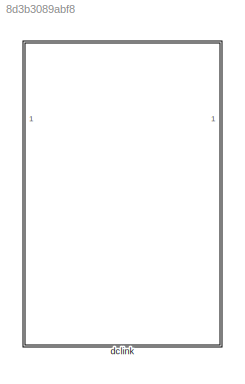
MODEL slx_8d3b3089abf8
KIND library
CONFIG AbsTol = auto
CONFIG EnableMultiTasking = off
CONFIG FixedStep = auto
CONFIG MaxStep = auto
CONFIG MinStep = auto
CONFIG RelTol = 1e-3
CONFIG SampleTimeConstraint = Unconstrained
CONFIG SolverName = VariableStepAuto
CONFIG StartTime = 0.0
CONFIG StopTime = 10.0
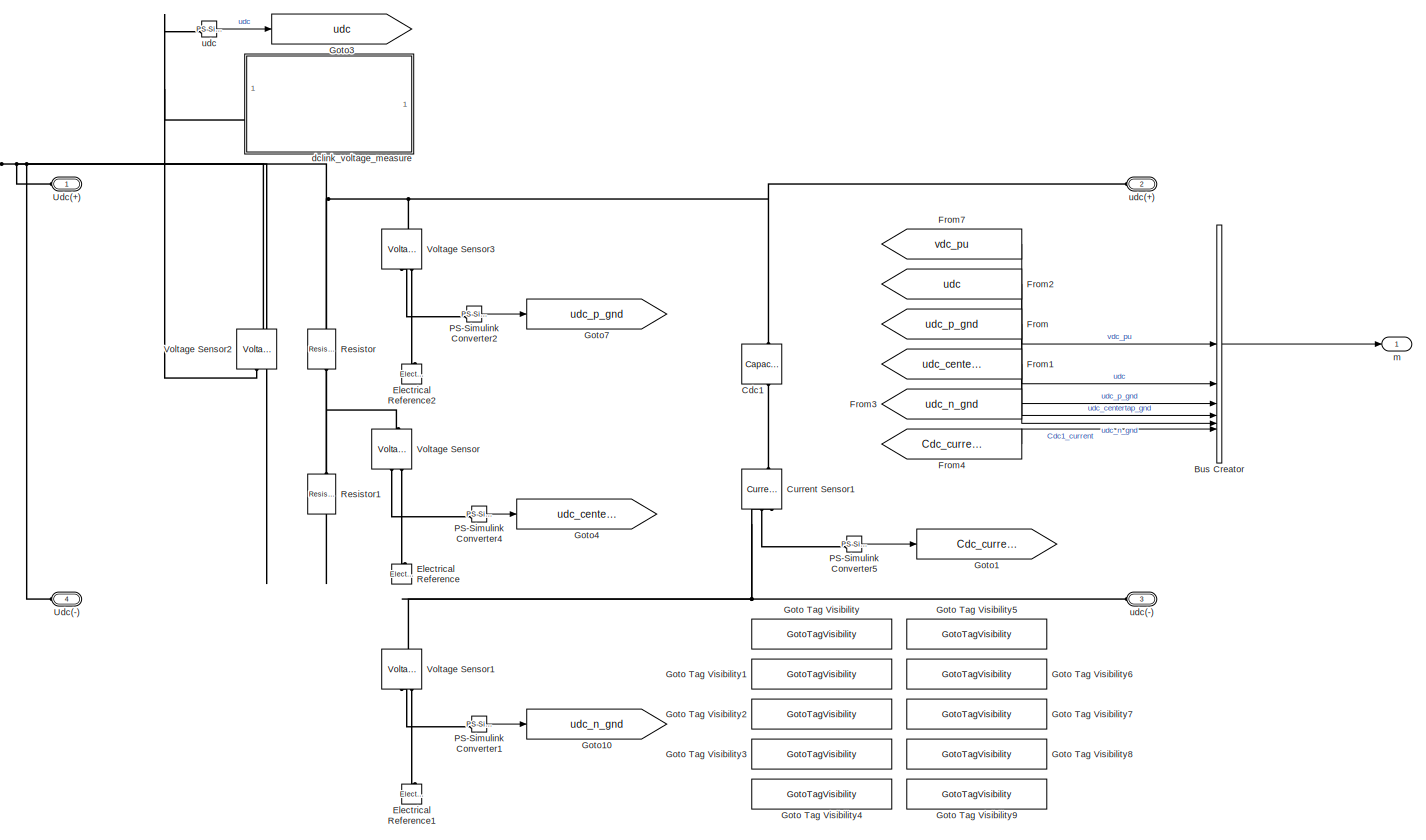
[diagram: dclink - part 1/1, most of the canvas]
BLOCK [SubSystem] dclink
BLOCK [BusCreator] dclink/Bus Creator
  DisplayOption = bar
  InheritFromInputs = on
  Inputs = 6
BLOCK [Reference] dclink/Cdc1  REF=fl_lib/Electrical/Electrical Elements/Capacitor
  NameLocation = right
  SourceBlock = fl_lib/Electrical/Electrical Elements/Capacitor
  SourceType = Capacitor
BLOCK [Reference] dclink/Current Sensor1  REF=fl_lib/Electrical/Electrical Sensors/Current Sensor
  NameLocation = left
  SourceBlock = fl_lib/Electrical/Electrical Sensors/Current Sensor
  SourceType = Current Sensor
BLOCK [Reference] dclink/Electrical Reference  REF=fl_lib/Electrical/Electrical Elements/Electrical Reference
  NameLocation = right
  SourceBlock = fl_lib/Electrical/Electrical Elements/Electrical Reference
  SourceType = Electrical Reference
BLOCK [Reference] dclink/Electrical Reference1  REF=fl_lib/Electrical/Electrical Elements/Electrical Reference
  NameLocation = right
  SourceBlock = fl_lib/Electrical/Electrical Elements/Electrical Reference
  SourceType = Electrical Reference
BLOCK [Reference] dclink/Electrical Reference2  REF=fl_lib/Electrical/Electrical Elements/Electrical Reference
  NameLocation = right
  SourceBlock = fl_lib/Electrical/Electrical Elements/Electrical Reference
  SourceType = Electrical Reference
BLOCK [From] dclink/From
  GotoTag = udc_p_gnd
  TagVisibility = scoped
BLOCK [From] dclink/From1
  GotoTag = udc_centertap_gnd
  TagVisibility = scoped
BLOCK [From] dclink/From2
  GotoTag = udc
  TagVisibility = scoped
BLOCK [From] dclink/From3
  GotoTag = udc_n_gnd
  TagVisibility = scoped
BLOCK [From] dclink/From4
  GotoTag = Cdc_current
  TagVisibility = scoped
BLOCK [From] dclink/From7
  GotoTag = vdc_pu
  TagVisibility = scoped
BLOCK [GotoTagVisibility] dclink/Goto Tag Visibility
  GotoTag = vdc_pu
BLOCK [GotoTagVisibility] dclink/Goto Tag Visibility1
  GotoTag = udc
BLOCK [GotoTagVisibility] dclink/Goto Tag Visibility2
  GotoTag = udc_n_gnd
BLOCK [GotoTagVisibility] dclink/Goto Tag Visibility3
  GotoTag = udc_centertap_gnd
BLOCK [GotoTagVisibility] dclink/Goto Tag Visibility4
  GotoTag = udc_p_gnd
BLOCK [GotoTagVisibility] dclink/Goto Tag Visibility5
  GotoTag = Cdc_current
BLOCK [GotoTagVisibility] dclink/Goto Tag Visibility6
  GotoTag = np_current
BLOCK [GotoTagVisibility] dclink/Goto Tag Visibility7
  GotoTag = Cdc2_current
BLOCK [GotoTagVisibility] dclink/Goto Tag Visibility8
  GotoTag = udc1
BLOCK [GotoTagVisibility] dclink/Goto Tag Visibility9
  GotoTag = udc2
BLOCK [Goto] dclink/Goto1
  GotoTag = Cdc_current
  TagVisibility = scoped
BLOCK [Goto] dclink/Goto10
  GotoTag = udc_n_gnd
  TagVisibility = scoped
BLOCK [Goto] dclink/Goto3
  GotoTag = udc
  TagVisibility = scoped
BLOCK [Goto] dclink/Goto4
  GotoTag = udc_centertap_gnd
  TagVisibility = scoped
BLOCK [Goto] dclink/Goto7
  GotoTag = udc_p_gnd
  TagVisibility = scoped
BLOCK [Reference] dclink/PS-Simulink Converter1  REF=nesl_utility/PS-Simulink
Converter
  SourceBlock = nesl_utility/PS-Simulink\nConverter
  SourceType = PS-Simulink\nConverter
BLOCK [Reference] dclink/PS-Simulink Converter2  REF=nesl_utility/PS-Simulink
Converter
  SourceBlock = nesl_utility/PS-Simulink\nConverter
  SourceType = PS-Simulink\nConverter
BLOCK [Reference] dclink/PS-Simulink Converter4  REF=nesl_utility/PS-Simulink
Converter
  SourceBlock = nesl_utility/PS-Simulink\nConverter
  SourceType = PS-Simulink\nConverter
BLOCK [Reference] dclink/PS-Simulink Converter5  REF=nesl_utility/PS-Simulink
Converter
  SourceBlock = nesl_utility/PS-Simulink\nConverter
  SourceType = PS-Simulink\nConverter
BLOCK [Reference] dclink/Resistor  REF=fl_lib/Electrical/Electrical Elements/Resistor
  NameLocation = left
  SourceBlock = fl_lib/Electrical/Electrical Elements/Resistor
  SourceType = Resistor
BLOCK [Reference] dclink/Resistor1  REF=fl_lib/Electrical/Electrical Elements/Resistor
  NameLocation = left
  SourceBlock = fl_lib/Electrical/Electrical Elements/Resistor
  SourceType = Resistor
BLOCK [PMIOPort] dclink/Udc(+)
  Side = Right
BLOCK [PMIOPort] dclink/Udc(-)
  Port = 4
  Side = Right
BLOCK [Reference] dclink/Voltage Sensor  REF=fl_lib/Electrical/Electrical Sensors/Voltage Sensor
  NameLocation = right
  SourceBlock = fl_lib/Electrical/Electrical Sensors/Voltage Sensor
  SourceType = Voltage Sensor
BLOCK [Reference] dclink/Voltage Sensor1  REF=fl_lib/Electrical/Electrical Sensors/Voltage Sensor
  NameLocation = right
  SourceBlock = fl_lib/Electrical/Electrical Sensors/Voltage Sensor
  SourceType = Voltage Sensor
BLOCK [Reference] dclink/Voltage Sensor2  REF=fl_lib/Electrical/Electrical Sensors/Voltage Sensor
  NameLocation = right
  SourceBlock = fl_lib/Electrical/Electrical Sensors/Voltage Sensor
  SourceType = Voltage Sensor
BLOCK [Reference] dclink/Voltage Sensor3  REF=fl_lib/Electrical/Electrical Sensors/Voltage Sensor
  NameLocation = right
  SourceBlock = fl_lib/Electrical/Electrical Sensors/Voltage Sensor
  SourceType = Voltage Sensor
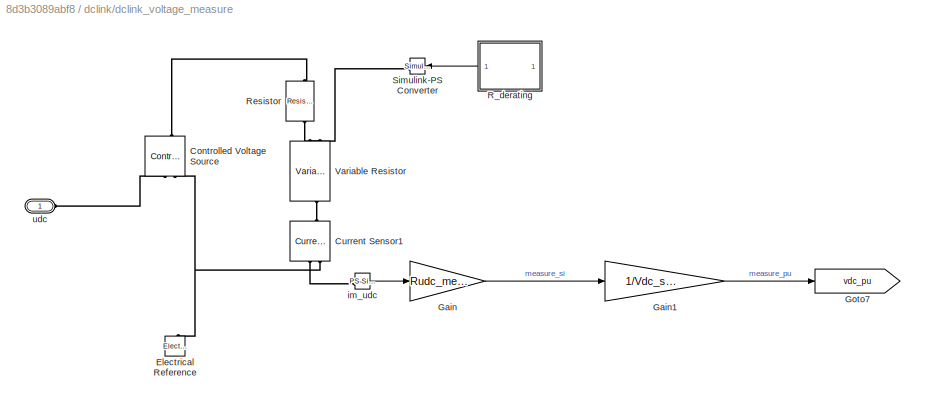
BLOCK [SubSystem] dclink/dclink_voltage_measure
BLOCK [Reference] dclink/dclink_voltage_measure/Controlled Voltage Source  REF=fl_lib/Electrical/Electrical Sources/Controlled Voltage
Source
  NameLocation = right
  SourceBlock = fl_lib/Electrical/Electrical Sources/Controlled Voltage\nSource
  SourceType = Controlled Voltage\nSource
BLOCK [Reference] dclink/dclink_voltage_measure/Current Sensor1  REF=fl_lib/Electrical/Electrical Sensors/Current Sensor
  NameLocation = left
  SourceBlock = fl_lib/Electrical/Electrical Sensors/Current Sensor
  SourceType = Current Sensor
BLOCK [Reference] dclink/dclink_voltage_measure/Electrical Reference  REF=fl_lib/Electrical/Electrical Elements/Electrical Reference
  NameLocation = right
  SourceBlock = fl_lib/Electrical/Electrical Elements/Electrical Reference
  SourceType = Electrical Reference
BLOCK [Gain] dclink/dclink_voltage_measure/Gain
  Gain = Rudc_measure
BLOCK [Gain] dclink/dclink_voltage_measure/Gain1
  Gain = 1/Vdc_scale
BLOCK [Goto] dclink/dclink_voltage_measure/Goto7
  GotoTag = vdc_pu
  TagVisibility = scoped
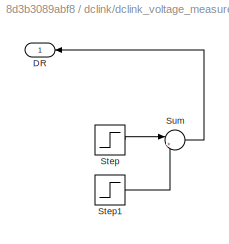
BLOCK [SubSystem] dclink/dclink_voltage_measure/R_derating
  Commented = on
BLOCK [Outport] dclink/dclink_voltage_measure/R_derating/DR
BLOCK [Step] dclink/dclink_voltage_measure/R_derating/Step
  After = 107.4e3/2
  SampleTime = 0
BLOCK [Step] dclink/dclink_voltage_measure/R_derating/Step1
  After = -107.4e3/2
  SampleTime = 0
  Time = 1.1
BLOCK [Sum] dclink/dclink_voltage_measure/R_derating/Sum
  Inputs = |++
BLOCK [Reference] dclink/dclink_voltage_measure/Resistor  REF=fl_lib/Electrical/Electrical Elements/Resistor
  NameLocation = left
  SourceBlock = fl_lib/Electrical/Electrical Elements/Resistor
  SourceType = Resistor
BLOCK [Reference] dclink/dclink_voltage_measure/Simulink-PS Converter  REF=nesl_utility/Simulink-PS
Converter
  NameLocation = top
  SourceBlock = nesl_utility/Simulink-PS\nConverter
  SourceType = Simulink-PS\nConverter
BLOCK [Reference] dclink/dclink_voltage_measure/Variable Resistor  REF=fl_lib/Electrical/Electrical Elements/Variable Resistor
  NameLocation = left
  SourceBlock = fl_lib/Electrical/Electrical Elements/Variable Resistor
  SourceType = Variable Resistor
BLOCK [Reference] dclink/dclink_voltage_measure/im_udc  REF=nesl_utility/PS-Simulink
Converter
  SourceBlock = nesl_utility/PS-Simulink\nConverter
  SourceType = PS-Simulink\nConverter
BLOCK [PMIOPort] dclink/dclink_voltage_measure/udc
  Side = Left
BLOCK [Outport] dclink/m
BLOCK [Reference] dclink/udc  REF=nesl_utility/PS-Simulink
Converter
  SourceBlock = nesl_utility/PS-Simulink\nConverter
  SourceType = PS-Simulink\nConverter
BLOCK [PMIOPort] dclink/udc(+)
  Port = 2
  Side = Left
BLOCK [PMIOPort] dclink/udc(-)
  Port = 3
  Side = Left
LINE dclink/Bus Creator:1 -> dclink/m:1
LINE dclink/From1:1 -> dclink/Bus Creator:4
LINE dclink/From2:1 -> dclink/Bus Creator:2
LINE dclink/From3:1 -> dclink/Bus Creator:5
LINE dclink/From4:1 -> dclink/Bus Creator:6
LINE dclink/From7:1 -> dclink/Bus Creator:1
LINE dclink/From:1 -> dclink/Bus Creator:3
LINE dclink/PS-Simulink Converter1:1 -> dclink/Goto10:1
LINE dclink/PS-Simulink Converter2:1 -> dclink/Goto7:1
LINE dclink/PS-Simulink Converter4:1 -> dclink/Goto4:1
LINE dclink/PS-Simulink Converter5:1 -> dclink/Goto1:1
LINE dclink/dclink_voltage_measure/Gain1:1 -> dclink/dclink_voltage_measure/Goto7:1
LINE dclink/dclink_voltage_measure/Gain:1 -> dclink/dclink_voltage_measure/Gain1:1
LINE dclink/dclink_voltage_measure/R_derating/Step1:1 -> dclink/dclink_voltage_measure/R_derating/Sum:2
LINE dclink/dclink_voltage_measure/R_derating/Step:1 -> dclink/dclink_voltage_measure/R_derating/Sum:1
LINE dclink/dclink_voltage_measure/R_derating/Sum:1 -> dclink/dclink_voltage_measure/R_derating/DR:1
LINE dclink/dclink_voltage_measure/R_derating:1 -> dclink/dclink_voltage_measure/Simulink-PS Converter:1
LINE dclink/dclink_voltage_measure/im_udc:1 -> dclink/dclink_voltage_measure/Gain:1
LINE dclink/udc:1 -> dclink/Goto3:1
PNET net1: dclink/Cdc1:LConn1 -- dclink/Resistor:LConn1 -- dclink/Udc(+):RConn1 -- dclink/Voltage Sensor2:LConn1 -- dclink/Voltage Sensor3:LConn1 -- dclink/udc(+):RConn1
PLINE dclink/Cdc1:RConn1 -- dclink/Current Sensor1:LConn1
PLINE dclink/Current Sensor1:RConn1 -- dclink/PS-Simulink Converter5:LConn1
PNET net2: dclink/Current Sensor1:RConn2 -- dclink/Resistor1:RConn1 -- dclink/Udc(-):RConn1 -- dclink/Voltage Sensor1:LConn1 -- dclink/Voltage Sensor2:RConn2 -- dclink/udc(-):RConn1
PLINE dclink/Electrical Reference1:LConn1 -- dclink/Voltage Sensor1:RConn2
PLINE dclink/Electrical Reference2:LConn1 -- dclink/Voltage Sensor3:RConn2
PLINE dclink/Electrical Reference:LConn1 -- dclink/Voltage Sensor:RConn2
PLINE dclink/PS-Simulink Converter1:LConn1 -- dclink/Voltage Sensor1:RConn1
PLINE dclink/PS-Simulink Converter2:LConn1 -- dclink/Voltage Sensor3:RConn1
PLINE dclink/PS-Simulink Converter4:LConn1 -- dclink/Voltage Sensor:RConn1
PNET net3: dclink/Resistor1:LConn1 -- dclink/Resistor:RConn1 -- dclink/Voltage Sensor:LConn1
PNET net4: dclink/Voltage Sensor2:RConn1 -- dclink/dclink_voltage_measure:LConn1 -- dclink/udc:LConn1
PLINE dclink/dclink_voltage_measure/Controlled Voltage Source:LConn1 -- dclink/dclink_voltage_measure/Resistor:LConn1
PLINE dclink/dclink_voltage_measure/Controlled Voltage Source:RConn1 -- dclink/dclink_voltage_measure/udc:RConn1
PNET net5: dclink/dclink_voltage_measure/Controlled Voltage Source:RConn2 -- dclink/dclink_voltage_measure/Current Sensor1:RConn2 -- dclink/dclink_voltage_measure/Electrical Reference:LConn1
PLINE dclink/dclink_voltage_measure/Current Sensor1:LConn1 -- dclink/dclink_voltage_measure/Variable Resistor:RConn1
PLINE dclink/dclink_voltage_measure/Current Sensor1:RConn1 -- dclink/dclink_voltage_measure/im_udc:LConn1
PLINE dclink/dclink_voltage_measure/Resistor:RConn1 -- dclink/dclink_voltage_measure/Variable Resistor:LConn2
PLINE dclink/dclink_voltage_measure/Simulink-PS Converter:RConn1 -- dclink/dclink_voltage_measure/Variable Resistor:LConn1
note: PNET lines group multi-terminal physical nets as a canonical sorted terminal list (undirected conserving connections); 2-terminal nets keep the pairwise PLINE form
